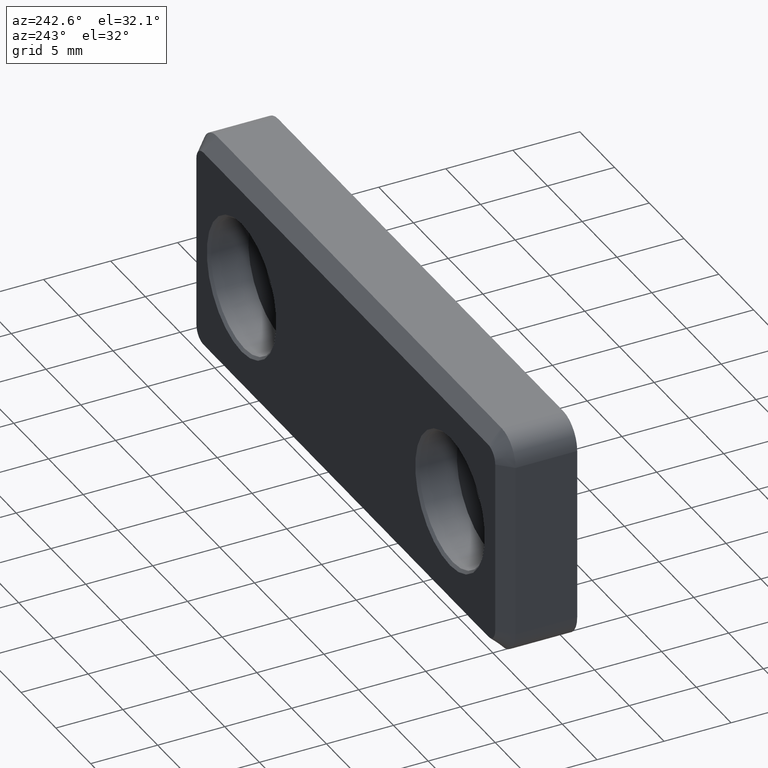
[diagram: clean part render]
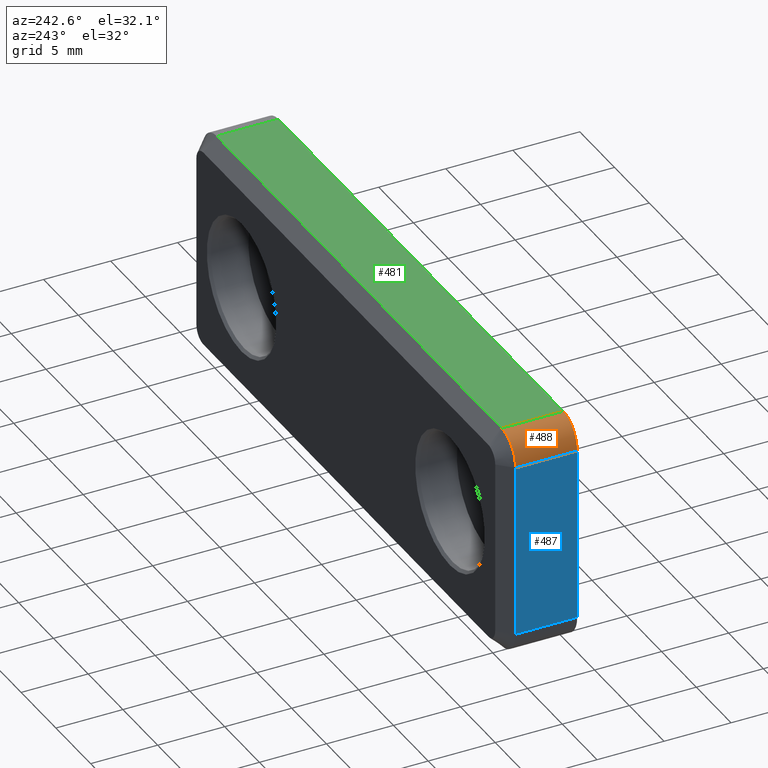
[diagram: same view with three faces highlighted in distinct colors, each labeled with its STEP entity id]
A machine part, auxiliary view with three faces highlighted in distinct colors.
Their STEP definitions:

[orange] entity #488 — the highlighted cylindrical surface (edge-blend (fillet) strip) has radius 2 mm, axis along (0, 1, 0).
#21=CYLINDRICAL_SURFACE('',#534,2.);
#54=CIRCLE('',#522,2.);
#58=CIRCLE('',#535,2.);
#88=FACE_OUTER_BOUND('',#121,.T.);
#121=EDGE_LOOP('',(#416,#417,#418,#419));
#170=LINE('',#782,#210);
#181=LINE('',#809,#221);
#210=VECTOR('',#633,4.60000000011092);
#221=VECTOR('',#662,4.6000000002);
#246=VERTEX_POINT('',#771);
#247=VERTEX_POINT('',#775);
#248=VERTEX_POINT('',#781);
#255=VERTEX_POINT('',#807);
#299=EDGE_CURVE('',#246,#247,#54,.T.);
#302=EDGE_CURVE('',#248,#247,#170,.T.);
#316=EDGE_CURVE('',#255,#246,#181,.T.);
#317=EDGE_CURVE('',#248,#255,#58,.T.);
#416=ORIENTED_EDGE('',*,*,#299,.F.);
#417=ORIENTED_EDGE('',*,*,#316,.F.);
#418=ORIENTED_EDGE('',*,*,#317,.F.);
#419=ORIENTED_EDGE('',*,*,#302,.T.);
#488=ADVANCED_FACE('',(#88),#21,.T.);
#522=AXIS2_PLACEMENT_3D('',#776,#625,#626);
#534=AXIS2_PLACEMENT_3D('',#810,#663,#664);
#535=AXIS2_PLACEMENT_3D('',#811,#665,#666);
#625=DIRECTION('center_axis',(0.,1.,1.22464679914735E-16));
#626=DIRECTION('ref_axis',(-1.,0.,0.));
#633=DIRECTION('',(6.481980169621E-10,1.,-5.94298264165701E-11));
#662=DIRECTION('',(4.346204555481E-11,1.,-1.18701113971332E-9));
#663=DIRECTION('center_axis',(0.,1.,1.22464679914735E-16));
#664=DIRECTION('ref_axis',(-1.,0.,0.));
#665=DIRECTION('center_axis',(0.,-1.,-1.22464679914735E-16));
#666=DIRECTION('ref_axis',(0.,-1.22464679914735E-16,1.));
#771=CARTESIAN_POINT('',(-22.4999999998,4.6000000002,6.49999999454));
#775=CARTESIAN_POINT('',(-20.4999999977629,4.60000000011092,8.4999999998378));
#776=CARTESIAN_POINT('Origin',(-20.5,4.6,6.5));
#781=CARTESIAN_POINT('',(-20.5,-2.22044604925031E-15,8.5));
#782=CARTESIAN_POINT('',(-20.5,-2.22044604925031E-15,8.5));
#807=CARTESIAN_POINT('',(-22.5,-1.11022302462516E-15,6.5));
#809=CARTESIAN_POINT('',(-22.5,-1.11022302462516E-15,6.5));
#810=CARTESIAN_POINT('Origin',(-20.5,-7.30016,6.5));
#811=CARTESIAN_POINT('Origin',(-20.5,-1.11022302462516E-15,6.5));

[blue] entity #487 — the highlighted planar face has unit normal (-1, 0, 0).
#87=FACE_OUTER_BOUND('',#120,.T.);
#120=EDGE_LOOP('',(#412,#413,#414,#415));
#166=LINE('',#772,#206);
#179=LINE('',#805,#219);
#180=LINE('',#808,#220);
#181=LINE('',#809,#221);
#206=VECTOR('',#621,12.9999999923036);
#219=VECTOR('',#658,4.60000000011114);
#220=VECTOR('',#661,13.);
#221=VECTOR('',#662,4.6000000002);
#245=VERTEX_POINT('',#767);
#246=VERTEX_POINT('',#771);
#254=VERTEX_POINT('',#803);
#255=VERTEX_POINT('',#807);
#297=EDGE_CURVE('',#245,#246,#166,.T.);
#314=EDGE_CURVE('',#254,#245,#179,.T.);
#315=EDGE_CURVE('',#255,#254,#180,.T.);
#316=EDGE_CURVE('',#255,#246,#181,.T.);
#412=ORIENTED_EDGE('',*,*,#297,.F.);
#413=ORIENTED_EDGE('',*,*,#314,.F.);
#414=ORIENTED_EDGE('',*,*,#315,.F.);
#415=ORIENTED_EDGE('',*,*,#316,.T.);
#463=PLANE('',#533);
#487=ADVANCED_FACE('',(#87),#463,.T.);
#533=AXIS2_PLACEMENT_3D('',#806,#659,#660);
#621=DIRECTION('',(-5.6501811813E-12,-5.65023532456291E-12,1.));
#658=DIRECTION('',(5.943072121032E-11,1.,6.4819852559128E-10));
#659=DIRECTION('center_axis',(-1.,0.,0.));
#660=DIRECTION('ref_axis',(0.,0.,-1.));
#661=DIRECTION('',(0.,1.22464679914735E-16,-1.));
#662=DIRECTION('',(4.346204555481E-11,1.,-1.18701113971332E-9));
#767=CARTESIAN_POINT('',(-22.4999999998389,4.60000000011114,-6.49999999776364));
#771=CARTESIAN_POINT('',(-22.4999999998,4.6000000002,6.49999999454));
#772=CARTESIAN_POINT('',(-22.49999999973,4.600000000273,-6.499999997018));
#803=CARTESIAN_POINT('',(-22.5,0.,-6.5));
#805=CARTESIAN_POINT('',(-22.5,0.,-6.5));
#806=CARTESIAN_POINT('Origin',(-22.5,5.6,8.5));
#807=CARTESIAN_POINT('',(-22.5,-1.11022302462516E-15,6.5));
#808=CARTESIAN_POINT('',(-22.5,-1.11022302462516E-15,6.5));
#809=CARTESIAN_POINT('',(-22.5,-1.11022302462516E-15,6.5));

[green] entity #481 — the highlighted planar face has unit normal (0, -0, 1).
#81=FACE_OUTER_BOUND('',#114,.T.);
#114=EDGE_LOOP('',(#388,#389,#390,#391));
#169=LINE('',#779,#209);
#170=LINE('',#782,#210);
#171=LINE('',#784,#211);
#172=LINE('',#785,#212);
#209=VECTOR('',#630,40.9999999929853);
#210=VECTOR('',#633,4.60000000011092);
#211=VECTOR('',#634,41.);
#212=VECTOR('',#635,4.60000000009511);
#240=VERTEX_POINT('',#749);
#247=VERTEX_POINT('',#775);
#248=VERTEX_POINT('',#781);
#249=VERTEX_POINT('',#783);
#301=EDGE_CURVE('',#247,#240,#169,.T.);
#302=EDGE_CURVE('',#248,#247,#170,.T.);
#303=EDGE_CURVE('',#249,#248,#171,.T.);
#304=EDGE_CURVE('',#249,#240,#172,.T.);
#388=ORIENTED_EDGE('',*,*,#301,.F.);
#389=ORIENTED_EDGE('',*,*,#302,.F.);
#390=ORIENTED_EDGE('',*,*,#303,.F.);
#391=ORIENTED_EDGE('',*,*,#304,.T.);
#460=PLANE('',#524);
#481=ADVANCED_FACE('',(#81),#460,.T.);
#524=AXIS2_PLACEMENT_3D('',#780,#631,#632);
#630=DIRECTION('',(1.,-1.791482951514E-12,1.791477535792E-12));
#631=DIRECTION('center_axis',(0.,-1.22464679914735E-16,1.));
#632=DIRECTION('ref_axis',(-1.,0.,0.));
#633=DIRECTION('',(6.481980169621E-10,1.,-5.94298264165701E-11));
#634=DIRECTION('',(-1.,0.,0.));
#635=DIRECTION('',(-1.187011069096E-9,1.,-4.34623092546601E-11));
#749=CARTESIAN_POINT('',(20.4999999952224,4.60000000009511,8.49999999987517));
#775=CARTESIAN_POINT('',(-20.4999999977629,4.60000000011092,8.4999999998378));
#779=CARTESIAN_POINT('',(-20.49999999702,4.600000000273,8.499999999727));
#780=CARTESIAN_POINT('Origin',(22.5,5.6,8.5));
#781=CARTESIAN_POINT('',(-20.5,-2.22044604925031E-15,8.5));
#782=CARTESIAN_POINT('',(-20.5,-2.22044604925031E-15,8.5));
#783=CARTESIAN_POINT('',(20.5,-2.22044604925031E-15,8.5));
#784=CARTESIAN_POINT('',(20.5,-2.22044604925031E-15,8.5));
#785=CARTESIAN_POINT('',(20.5,-2.22044604925031E-15,8.5));